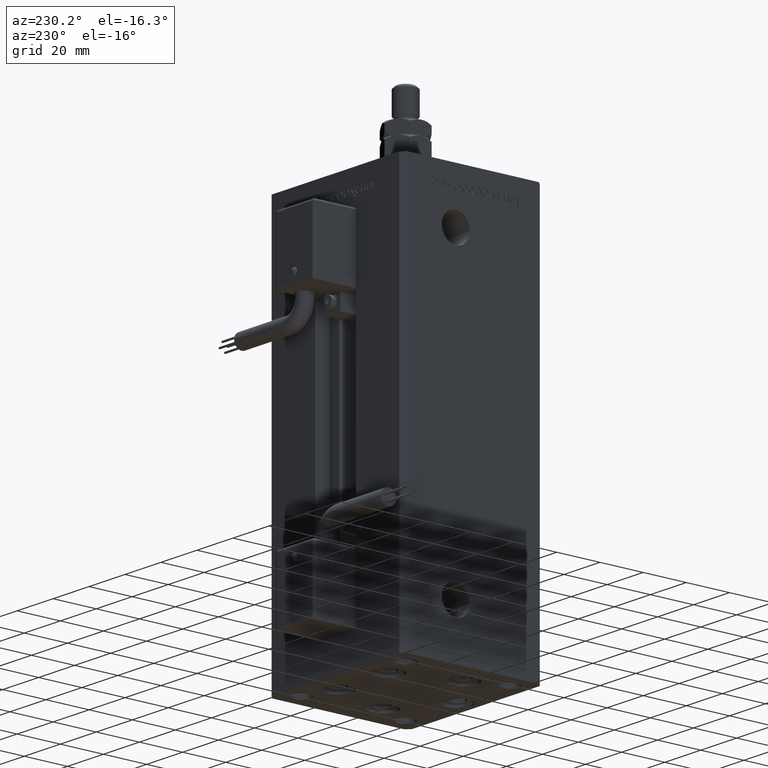
[diagram: clean part render]
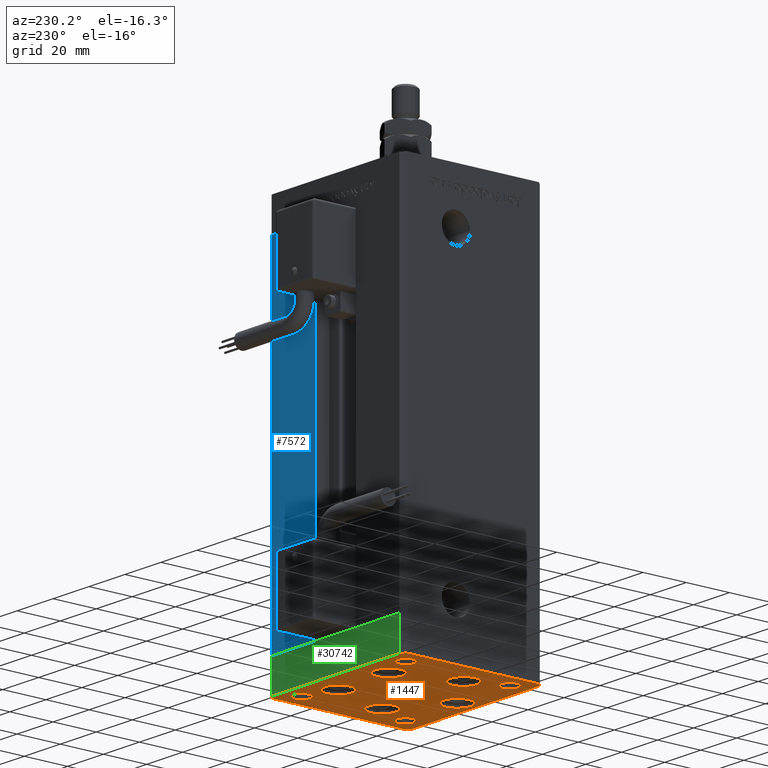
[diagram: same view with three faces highlighted in distinct colors, each labeled with its STEP entity id]
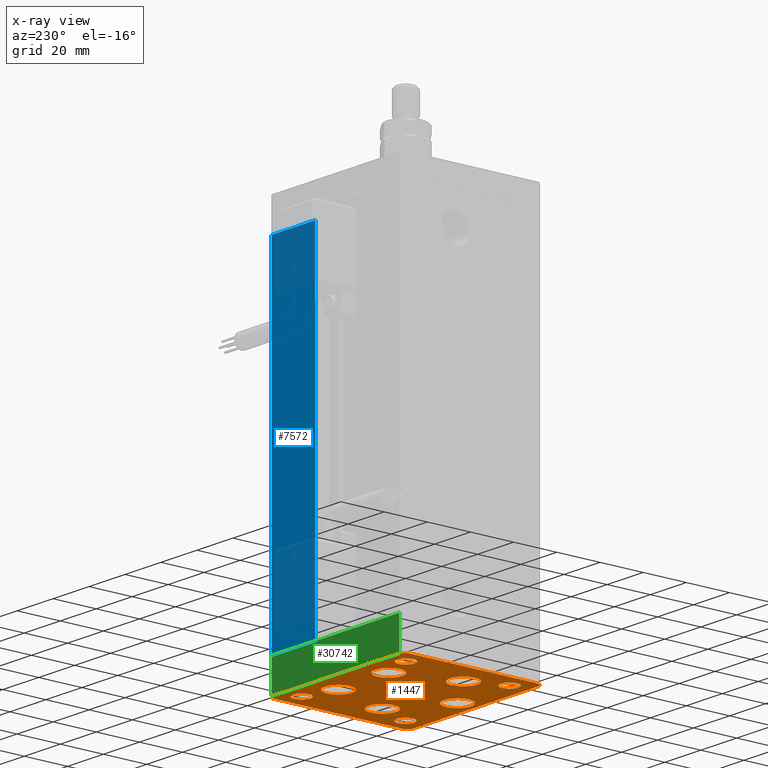
[diagram: x-ray of the same camera — body ghosted, the three highlighted faces saturated]
A machine part, auxiliary view with three faces highlighted in distinct colors.
The next image is the same camera in x-ray (body ghosted, the three faces saturated) — at least one of them is partly hidden behind the body in this view.
Their STEP definitions:

[orange] entity #1447 — the highlighted planar face has unit normal (0, 0, -1).
#62 = VERTEX_POINT ( 'NONE', #29114 ) ;
#218 = FACE_BOUND ( 'NONE', #20363, .T. ) ;
#412 = VERTEX_POINT ( 'NONE', #50158 ) ;
#514 = CARTESIAN_POINT ( 'NONE',  ( -20.24106857963322881, 19.49999999999999645, 0.000000000000000000 ) ) ;
#533 = EDGE_CURVE ( 'NONE', #47865, #7619, #45236, .T. ) ;
#665 = CARTESIAN_POINT ( 'NONE',  ( 33.00000000000001421, -23.99999999999999289, 0.000000000000000000 ) ) ;
#700 = DIRECTION ( 'NONE',  ( 1.000000000000000000, 0.000000000000000000, 0.000000000000000000 ) ) ;
#879 = CARTESIAN_POINT ( 'NONE',  ( -33.00000000000000711, 24.00000000000000711, 0.000000000000000000 ) ) ;
#907 = AXIS2_PLACEMENT_3D ( 'NONE', #25737, #52988, #13665 ) ;
#1350 = EDGE_CURVE ( 'NONE', #19222, #412, #8430, .T. ) ;
#1447 = ADVANCED_FACE ( 'NONE', ( #218, #48142, #4518, #8808, #52997, #40079, #53276, #44959, #26317, #22002 ), #44114, .T. ) ;
#1530 = CARTESIAN_POINT ( 'NONE',  ( 37.50000000000001421, -30.50000000000000711, 0.000000000000000000 ) ) ;
#1838 = CARTESIAN_POINT ( 'NONE',  ( 37.49999999999992184, 30.50000000000001066, 0.000000000000000000 ) ) ;
#1851 = EDGE_CURVE ( 'NONE', #14709, #45138, #33664, .T. ) ;
#2097 = VECTOR ( 'NONE', #33783, 1000.000000000000000 ) ;
#2328 = CARTESIAN_POINT ( 'NONE',  ( -16.37741699796951877, -8.000000000000005329, 0.000000000000000000 ) ) ;
#2399 = AXIS2_PLACEMENT_3D ( 'NONE', #48301, #26473, #43988 ) ;
#2609 = AXIS2_PLACEMENT_3D ( 'NONE', #20620, #20051, #15747 ) ;
#3364 = AXIS2_PLACEMENT_3D ( 'NONE', #7978, #7409, #42424 ) ;
#3369 = CARTESIAN_POINT ( 'NONE',  ( 35.50000000000000711, -32.50000000000000711, 0.000000000000000000 ) ) ;
#3981 = CIRCLE ( 'NONE', #36058, 6.250000000000000000 ) ;
#4245 = EDGE_CURVE ( 'NONE', #10298, #16699, #3981, .T. ) ;
#4518 = FACE_BOUND ( 'NONE', #4865, .T. ) ;
#4847 = ORIENTED_EDGE ( 'NONE', *, *, #44148, .T. ) ;
#4865 = EDGE_LOOP ( 'NONE', ( #9887, #46051 ) ) ;
#4964 = CARTESIAN_POINT ( 'NONE',  ( -37.50000000000001421, 30.49999999999998579, 0.000000000000000000 ) ) ;
#5441 = VERTEX_POINT ( 'NONE', #39960 ) ;
#5632 = DIRECTION ( 'NONE',  ( 1.000000000000000000, 0.000000000000000000, 0.000000000000000000 ) ) ;
#5747 = CARTESIAN_POINT ( 'NONE',  ( -22.62741699796951877, -8.000000000000005329, 0.000000000000000000 ) ) ;
#5761 = DIRECTION ( 'NONE',  ( 1.000000000000000000, 0.000000000000000000, 0.000000000000000000 ) ) ;
#6050 = DIRECTION ( 'NONE',  ( -0.000000000000000000, 0.000000000000000000, 1.000000000000000000 ) ) ;
#6156 = EDGE_CURVE ( 'NONE', #8160, #40998, #29697, .T. ) ;
#6549 = ORIENTED_EDGE ( 'NONE', *, *, #10076, .T. ) ;
#7386 = DIRECTION ( 'NONE',  ( 1.000000000000000000, 0.000000000000000000, 0.000000000000000000 ) ) ;
#7409 = DIRECTION ( 'NONE',  ( 0.000000000000000000, -0.000000000000000000, -1.000000000000000000 ) ) ;
#7619 = VERTEX_POINT ( 'NONE', #665 ) ;
#7978 = CARTESIAN_POINT ( 'NONE',  ( -22.62741699796951877, -8.000000000000005329, 0.000000000000000000 ) ) ;
#8160 = VERTEX_POINT ( 'NONE', #23151 ) ;
#8430 = CIRCLE ( 'NONE', #16695, 6.250000000000000000 ) ;
#8523 = VERTEX_POINT ( 'NONE', #53227 ) ;
#8615 = EDGE_CURVE ( 'NONE', #13317, #24073, #33685, .T. ) ;
#8682 = CIRCLE ( 'NONE', #18744, 4.000000000000003553 ) ;
#8718 = EDGE_LOOP ( 'NONE', ( #39014, #18235 ) ) ;
#8762 = AXIS2_PLACEMENT_3D ( 'NONE', #43005, #47890, #21457 ) ;
#8808 = FACE_BOUND ( 'NONE', #47370, .T. ) ;
#8981 = DIRECTION ( 'NONE',  ( -0.000000000000000000, 0.000000000000000000, 1.000000000000000000 ) ) ;
#9375 = CARTESIAN_POINT ( 'NONE',  ( 0.000000000000000000, 0.000000000000000000, 0.000000000000000000 ) ) ;
#9468 = AXIS2_PLACEMENT_3D ( 'NONE', #10736, #53799, #36574 ) ;
#9560 = CARTESIAN_POINT ( 'NONE',  ( -35.49999999999998579, -32.50000000000001421, 0.000000000000000000 ) ) ;
#9710 = ORIENTED_EDGE ( 'NONE', *, *, #29557, .T. ) ;
#9819 = CARTESIAN_POINT ( 'NONE',  ( 29.00000000000001066, 24.00000000000000711, 0.000000000000000000 ) ) ;
#9887 = ORIENTED_EDGE ( 'NONE', *, *, #51711, .T. ) ;
#9939 = AXIS2_PLACEMENT_3D ( 'NONE', #35110, #13852, #700 ) ;
#10076 = EDGE_CURVE ( 'NONE', #56231, #53772, #33510, .T. ) ;
#10298 = VERTEX_POINT ( 'NONE', #51644 ) ;
#10736 = CARTESIAN_POINT ( 'NONE',  ( -13.99106857963322703, 19.49999999999999645, 0.000000000000000000 ) ) ;
#10786 = AXIS2_PLACEMENT_3D ( 'NONE', #21888, #48600, #30519 ) ;
#10854 = DIRECTION ( 'NONE',  ( 0.000000000000000000, -0.000000000000000000, -1.000000000000000000 ) ) ;
#10907 = DIRECTION ( 'NONE',  ( 1.000000000000000000, 0.000000000000000000, 0.000000000000000000 ) ) ;
#11134 = LINE ( 'NONE', #24035, #23339 ) ;
#11323 = VERTEX_POINT ( 'NONE', #16290 ) ;
#11656 = DIRECTION ( 'NONE',  ( -0.000000000000000000, 0.000000000000000000, 1.000000000000000000 ) ) ;
#12029 = DIRECTION ( 'NONE',  ( -0.7071067811865426878, -0.7071067811865524577, 0.000000000000000000 ) ) ;
#12031 = ORIENTED_EDGE ( 'NONE', *, *, #54682, .T. ) ;
#12230 = EDGE_CURVE ( 'NONE', #8523, #37002, #29899, .T. ) ;
#12247 = CARTESIAN_POINT ( 'NONE',  ( 29.00000000000001066, -23.99999999999999289, 0.000000000000000000 ) ) ;
#12414 = CARTESIAN_POINT ( 'NONE',  ( -35.49999999999998579, -32.50000000000001421, 0.000000000000000000 ) ) ;
#12732 = EDGE_CURVE ( 'NONE', #5441, #13317, #49505, .T. ) ;
#12862 = CARTESIAN_POINT ( 'NONE',  ( 35.49999999999992184, 32.50000000000000711, 0.000000000000000000 ) ) ;
#13143 = ORIENTED_EDGE ( 'NONE', *, *, #26731, .T. ) ;
#13317 = VERTEX_POINT ( 'NONE', #9560 ) ;
#13665 = DIRECTION ( 'NONE',  ( 1.000000000000000000, 0.000000000000000000, 0.000000000000000000 ) ) ;
#13852 = DIRECTION ( 'NONE',  ( 0.000000000000000000, -0.000000000000000000, -1.000000000000000000 ) ) ;
#14119 = AXIS2_PLACEMENT_3D ( 'NONE', #43211, #11656, #16517 ) ;
#14253 = CIRCLE ( 'NONE', #15176, 3.999999999999996447 ) ;
#14667 = DIRECTION ( 'NONE',  ( 1.000000000000000000, 0.000000000000000000, 0.000000000000000000 ) ) ;
#14709 = VERTEX_POINT ( 'NONE', #1838 ) ;
#14745 = DIRECTION ( 'NONE',  ( 0.7071067811865474617, -0.7071067811865474617, 0.000000000000000000 ) ) ;
#15093 = CIRCLE ( 'NONE', #44462, 6.250000000000001776 ) ;
#15176 = AXIS2_PLACEMENT_3D ( 'NONE', #17572, #8981, #38562 ) ;
#15220 = DIRECTION ( 'NONE',  ( 1.000000000000000000, 0.000000000000000000, 0.000000000000000000 ) ) ;
#15249 = VECTOR ( 'NONE', #14745, 1000.000000000000114 ) ;
#15357 = CIRCLE ( 'NONE', #10786, 4.000000000000000000 ) ;
#15747 = DIRECTION ( 'NONE',  ( 1.000000000000000000, 0.000000000000000000, 0.000000000000000000 ) ) ;
#15919 = ORIENTED_EDGE ( 'NONE', *, *, #51192, .T. ) ;
#16290 = CARTESIAN_POINT ( 'NONE',  ( -25.00000000000001421, 24.00000000000000711, 0.000000000000000000 ) ) ;
#16490 = CARTESIAN_POINT ( 'NONE',  ( 7.741068579633223479, 19.50000000000000000, 0.000000000000000000 ) ) ;
#16517 = DIRECTION ( 'NONE',  ( 1.000000000000000000, 0.000000000000000000, 0.000000000000000000 ) ) ;
#16695 = AXIS2_PLACEMENT_3D ( 'NONE', #47577, #34647, #7386 ) ;
#16699 = VERTEX_POINT ( 'NONE', #52819 ) ;
#16924 = CARTESIAN_POINT ( 'NONE',  ( 35.50000000000000711, -32.50000000000000711, 0.000000000000000000 ) ) ;
#17224 = CARTESIAN_POINT ( 'NONE',  ( 37.50000000000001421, -30.50000000000000711, 0.000000000000000000 ) ) ;
#17572 = CARTESIAN_POINT ( 'NONE',  ( -29.00000000000001066, 24.00000000000000711, 0.000000000000000000 ) ) ;
#17802 = VERTEX_POINT ( 'NONE', #39566 ) ;
#17935 = CIRCLE ( 'NONE', #25289, 6.250000000000001776 ) ;
#18235 = ORIENTED_EDGE ( 'NONE', *, *, #53923, .F. ) ;
#18744 = AXIS2_PLACEMENT_3D ( 'NONE', #19511, #41630, #5761 ) ;
#19040 = CARTESIAN_POINT ( 'NONE',  ( -37.49999999999998579, -30.50000000000001421, 0.000000000000000000 ) ) ;
#19222 = VERTEX_POINT ( 'NONE', #514 ) ;
#19439 = EDGE_LOOP ( 'NONE', ( #48494, #12031 ) ) ;
#19511 = CARTESIAN_POINT ( 'NONE',  ( 29.00000000000001066, -23.99999999999999289, 0.000000000000000000 ) ) ;
#19874 = EDGE_CURVE ( 'NONE', #17802, #37495, #17935, .T. ) ;
#20051 = DIRECTION ( 'NONE',  ( -0.000000000000000000, 0.000000000000000000, 1.000000000000000000 ) ) ;
#20224 = CIRCLE ( 'NONE', #42235, 4.000000000000003553 ) ;
#20296 = EDGE_LOOP ( 'NONE', ( #6549, #13143 ) ) ;
#20363 = EDGE_LOOP ( 'NONE', ( #56650, #4847 ) ) ;
#20620 = CARTESIAN_POINT ( 'NONE',  ( -29.00000000000001066, 24.00000000000000711, 0.000000000000000000 ) ) ;
#20730 = EDGE_CURVE ( 'NONE', #31255, #62, #27129, .T. ) ;
#20891 = CIRCLE ( 'NONE', #9939, 6.250000000000000000 ) ;
#21457 = DIRECTION ( 'NONE',  ( 1.000000000000000000, 0.000000000000000000, 0.000000000000000000 ) ) ;
#21597 = DIRECTION ( 'NONE',  ( 4.550094363217855288E-16, -1.000000000000000000, 0.000000000000000000 ) ) ;
#21888 = CARTESIAN_POINT ( 'NONE',  ( -29.00000000000001066, -23.99999999999999289, 0.000000000000000000 ) ) ;
#22002 = FACE_BOUND ( 'NONE', #38743, .T. ) ;
#22189 = VECTOR ( 'NONE', #51163, 999.9999999999998863 ) ;
#22922 = EDGE_LOOP ( 'NONE', ( #55616, #30773 ) ) ;
#23151 = CARTESIAN_POINT ( 'NONE',  ( 25.00000000000000711, 24.00000000000000711, 0.000000000000000000 ) ) ;
#23339 = VECTOR ( 'NONE', #51303, 1000.000000000000000 ) ;
#23456 = CIRCLE ( 'NONE', #48231, 6.250000000000001776 ) ;
#23814 = DIRECTION ( 'NONE',  ( 0.000000000000000000, -0.000000000000000000, -1.000000000000000000 ) ) ;
#24035 = CARTESIAN_POINT ( 'NONE',  ( 35.49999999999992184, 32.50000000000000711, 0.000000000000000000 ) ) ;
#24073 = VERTEX_POINT ( 'NONE', #16924 ) ;
#24263 = VECTOR ( 'NONE', #24771, 1000.000000000000000 ) ;
#24771 = DIRECTION ( 'NONE',  ( 1.000000000000000000, 9.773090005503140331E-17, 0.000000000000000000 ) ) ;
#24942 = AXIS2_PLACEMENT_3D ( 'NONE', #9375, #39514, #5632 ) ;
#25289 = AXIS2_PLACEMENT_3D ( 'NONE', #45671, #41361, #15220 ) ;
#25615 = CARTESIAN_POINT ( 'NONE',  ( 37.49999999999992184, 30.50000000000001066, 0.000000000000000000 ) ) ;
#25737 = CARTESIAN_POINT ( 'NONE',  ( 2.939152317953647500E-15, -24.00000000000000000, 0.000000000000000000 ) ) ;
#25769 = EDGE_CURVE ( 'NONE', #62, #31255, #15357, .T. ) ;
#25882 = EDGE_CURVE ( 'NONE', #28642, #14709, #36786, .T. ) ;
#25890 = ORIENTED_EDGE ( 'NONE', *, *, #533, .T. ) ;
#26317 = FACE_OUTER_BOUND ( 'NONE', #32735, .T. ) ;
#26352 = EDGE_CURVE ( 'NONE', #11323, #42214, #26399, .T. ) ;
#26399 = CIRCLE ( 'NONE', #2609, 3.999999999999996447 ) ;
#26473 = DIRECTION ( 'NONE',  ( 0.000000000000000000, -0.000000000000000000, -1.000000000000000000 ) ) ;
#26731 = EDGE_CURVE ( 'NONE', #53772, #56231, #20891, .T. ) ;
#27061 = DIRECTION ( 'NONE',  ( 1.000000000000000000, 0.000000000000000000, 0.000000000000000000 ) ) ;
#27129 = CIRCLE ( 'NONE', #2399, 4.000000000000000000 ) ;
#27314 = ORIENTED_EDGE ( 'NONE', *, *, #25882, .T. ) ;
#28642 = VERTEX_POINT ( 'NONE', #17224 ) ;
#28746 = DIRECTION ( 'NONE',  ( -1.478780668045802821E-15, 1.000000000000000000, 0.000000000000000000 ) ) ;
#29114 = CARTESIAN_POINT ( 'NONE',  ( -25.00000000000001066, -23.99999999999999289, 0.000000000000000000 ) ) ;
#29557 = EDGE_CURVE ( 'NONE', #31652, #44016, #42458, .T. ) ;
#29697 = CIRCLE ( 'NONE', #14119, 4.000000000000003553 ) ;
#29899 = CIRCLE ( 'NONE', #3364, 6.250000000000001776 ) ;
#30519 = DIRECTION ( 'NONE',  ( 1.000000000000000000, 0.000000000000000000, 0.000000000000000000 ) ) ;
#30598 = EDGE_CURVE ( 'NONE', #16699, #10298, #34796, .T. ) ;
#30762 = CARTESIAN_POINT ( 'NONE',  ( -33.00000000000000711, -23.99999999999999289, 0.000000000000000000 ) ) ;
#30773 = ORIENTED_EDGE ( 'NONE', *, *, #6156, .F. ) ;
#31255 = VERTEX_POINT ( 'NONE', #30762 ) ;
#31652 = VERTEX_POINT ( 'NONE', #43250 ) ;
#32407 = CIRCLE ( 'NONE', #9468, 6.250000000000000000 ) ;
#32565 = ORIENTED_EDGE ( 'NONE', *, *, #44373, .T. ) ;
#32735 = EDGE_LOOP ( 'NONE', ( #36550, #41340, #33425, #27314, #41984, #45932, #9710, #32565 ) ) ;
#33319 = AXIS2_PLACEMENT_3D ( 'NONE', #12247, #38647, #56157 ) ;
#33425 = ORIENTED_EDGE ( 'NONE', *, *, #46105, .T. ) ;
#33510 = CIRCLE ( 'NONE', #8762, 6.250000000000000000 ) ;
#33664 = LINE ( 'NONE', #25615, #22189 ) ;
#33685 = LINE ( 'NONE', #12414, #24263 ) ;
#33783 = DIRECTION ( 'NONE',  ( 0.7071067811865487940, 0.7071067811865463515, 0.000000000000000000 ) ) ;
#34475 = EDGE_LOOP ( 'NONE', ( #15919, #25890 ) ) ;
#34647 = DIRECTION ( 'NONE',  ( 0.000000000000000000, -0.000000000000000000, -1.000000000000000000 ) ) ;
#34785 = CARTESIAN_POINT ( 'NONE',  ( 33.00000000000001421, 24.00000000000000711, 0.000000000000000000 ) ) ;
#34796 = CIRCLE ( 'NONE', #907, 6.250000000000000000 ) ;
#35110 = CARTESIAN_POINT ( 'NONE',  ( 13.99106857963322348, 19.50000000000000000, 0.000000000000000000 ) ) ;
#35685 = CARTESIAN_POINT ( 'NONE',  ( 2.939152317953647500E-15, -24.00000000000000000, 0.000000000000000000 ) ) ;
#36058 = AXIS2_PLACEMENT_3D ( 'NONE', #35685, #53184, #27061 ) ;
#36550 = ORIENTED_EDGE ( 'NONE', *, *, #12732, .T. ) ;
#36574 = DIRECTION ( 'NONE',  ( 1.000000000000000000, 0.000000000000000000, 0.000000000000000000 ) ) ;
#36786 = LINE ( 'NONE', #1530, #41998 ) ;
#37002 = VERTEX_POINT ( 'NONE', #2328 ) ;
#37024 = EDGE_CURVE ( 'NONE', #40998, #8160, #20224, .T. ) ;
#37495 = VERTEX_POINT ( 'NONE', #54725 ) ;
#38068 = ORIENTED_EDGE ( 'NONE', *, *, #30598, .T. ) ;
#38097 = CARTESIAN_POINT ( 'NONE',  ( 22.62741699796951877, -8.000000000000000000, 0.000000000000000000 ) ) ;
#38562 = DIRECTION ( 'NONE',  ( 1.000000000000000000, 0.000000000000000000, 0.000000000000000000 ) ) ;
#38647 = DIRECTION ( 'NONE',  ( 0.000000000000000000, -0.000000000000000000, -1.000000000000000000 ) ) ;
#38743 = EDGE_LOOP ( 'NONE', ( #55044, #39993 ) ) ;
#39014 = ORIENTED_EDGE ( 'NONE', *, *, #26352, .F. ) ;
#39216 = LINE ( 'NONE', #3369, #2097 ) ;
#39514 = DIRECTION ( 'NONE',  ( -0.000000000000000000, 0.000000000000000000, 1.000000000000000000 ) ) ;
#39554 = ORIENTED_EDGE ( 'NONE', *, *, #4245, .T. ) ;
#39566 = CARTESIAN_POINT ( 'NONE',  ( 28.87741699796952233, -8.000000000000000000, 0.000000000000000000 ) ) ;
#39960 = CARTESIAN_POINT ( 'NONE',  ( -37.49999999999998579, -30.50000000000001421, 0.000000000000000000 ) ) ;
#39993 = ORIENTED_EDGE ( 'NONE', *, *, #20730, .T. ) ;
#40079 = FACE_BOUND ( 'NONE', #22922, .T. ) ;
#40288 = VECTOR ( 'NONE', #12029, 1000.000000000000000 ) ;
#40998 = VERTEX_POINT ( 'NONE', #34785 ) ;
#41340 = ORIENTED_EDGE ( 'NONE', *, *, #8615, .T. ) ;
#41361 = DIRECTION ( 'NONE',  ( 0.000000000000000000, -0.000000000000000000, -1.000000000000000000 ) ) ;
#41438 = CARTESIAN_POINT ( 'NONE',  ( 20.24106857963322526, 19.50000000000000000, 0.000000000000000000 ) ) ;
#41559 = DIRECTION ( 'NONE',  ( 1.000000000000000000, 0.000000000000000000, 0.000000000000000000 ) ) ;
#41630 = DIRECTION ( 'NONE',  ( 0.000000000000000000, -0.000000000000000000, -1.000000000000000000 ) ) ;
#41984 = ORIENTED_EDGE ( 'NONE', *, *, #1851, .T. ) ;
#41998 = VECTOR ( 'NONE', #28746, 1000.000000000000000 ) ;
#42214 = VERTEX_POINT ( 'NONE', #879 ) ;
#42235 = AXIS2_PLACEMENT_3D ( 'NONE', #9819, #6050, #14667 ) ;
#42424 = DIRECTION ( 'NONE',  ( 1.000000000000000000, 0.000000000000000000, 0.000000000000000000 ) ) ;
#42458 = LINE ( 'NONE', #47342, #40288 ) ;
#43005 = CARTESIAN_POINT ( 'NONE',  ( 13.99106857963322348, 19.50000000000000000, 0.000000000000000000 ) ) ;
#43211 = CARTESIAN_POINT ( 'NONE',  ( 29.00000000000001066, 24.00000000000000711, 0.000000000000000000 ) ) ;
#43250 = CARTESIAN_POINT ( 'NONE',  ( -35.50000000000002842, 32.49999999999999289, 0.000000000000000000 ) ) ;
#43838 = CARTESIAN_POINT ( 'NONE',  ( 25.00000000000000711, -23.99999999999999289, 0.000000000000000000 ) ) ;
#43988 = DIRECTION ( 'NONE',  ( 1.000000000000000000, 0.000000000000000000, 0.000000000000000000 ) ) ;
#44016 = VERTEX_POINT ( 'NONE', #45622 ) ;
#44114 = PLANE ( 'NONE',  #24942 ) ;
#44148 = EDGE_CURVE ( 'NONE', #412, #19222, #32407, .T. ) ;
#44373 = EDGE_CURVE ( 'NONE', #44016, #5441, #52886, .T. ) ;
#44462 = AXIS2_PLACEMENT_3D ( 'NONE', #38097, #10854, #41559 ) ;
#44959 = FACE_BOUND ( 'NONE', #8718, .T. ) ;
#45138 = VERTEX_POINT ( 'NONE', #12862 ) ;
#45236 = CIRCLE ( 'NONE', #33319, 4.000000000000003553 ) ;
#45622 = CARTESIAN_POINT ( 'NONE',  ( -37.50000000000001421, 30.49999999999998579, 0.000000000000000000 ) ) ;
#45671 = CARTESIAN_POINT ( 'NONE',  ( 22.62741699796951877, -8.000000000000000000, 0.000000000000000000 ) ) ;
#45932 = ORIENTED_EDGE ( 'NONE', *, *, #51717, .T. ) ;
#46051 = ORIENTED_EDGE ( 'NONE', *, *, #19874, .T. ) ;
#46105 = EDGE_CURVE ( 'NONE', #24073, #28642, #39216, .T. ) ;
#47342 = CARTESIAN_POINT ( 'NONE',  ( -35.50000000000002842, 32.49999999999999289, 0.000000000000000000 ) ) ;
#47370 = EDGE_LOOP ( 'NONE', ( #38068, #39554 ) ) ;
#47577 = CARTESIAN_POINT ( 'NONE',  ( -13.99106857963322703, 19.49999999999999645, 0.000000000000000000 ) ) ;
#47865 = VERTEX_POINT ( 'NONE', #43838 ) ;
#47890 = DIRECTION ( 'NONE',  ( 0.000000000000000000, -0.000000000000000000, -1.000000000000000000 ) ) ;
#48142 = FACE_BOUND ( 'NONE', #20296, .T. ) ;
#48231 = AXIS2_PLACEMENT_3D ( 'NONE', #5747, #23814, #10907 ) ;
#48301 = CARTESIAN_POINT ( 'NONE',  ( -29.00000000000001066, -23.99999999999999289, 0.000000000000000000 ) ) ;
#48494 = ORIENTED_EDGE ( 'NONE', *, *, #12230, .T. ) ;
#48600 = DIRECTION ( 'NONE',  ( 0.000000000000000000, -0.000000000000000000, -1.000000000000000000 ) ) ;
#49505 = LINE ( 'NONE', #19040, #15249 ) ;
#50158 = CARTESIAN_POINT ( 'NONE',  ( -7.741068579633227031, 19.49999999999999645, 0.000000000000000000 ) ) ;
#51163 = DIRECTION ( 'NONE',  ( -0.7071067811865482389, 0.7071067811865469066, 0.000000000000000000 ) ) ;
#51192 = EDGE_CURVE ( 'NONE', #7619, #47865, #8682, .T. ) ;
#51303 = DIRECTION ( 'NONE',  ( -1.000000000000000000, -1.954618001100629052E-16, 0.000000000000000000 ) ) ;
#51644 = CARTESIAN_POINT ( 'NONE',  ( 6.250000000000002665, -24.00000000000000000, 0.000000000000000000 ) ) ;
#51711 = EDGE_CURVE ( 'NONE', #37495, #17802, #15093, .T. ) ;
#51717 = EDGE_CURVE ( 'NONE', #45138, #31652, #11134, .T. ) ;
#52819 = CARTESIAN_POINT ( 'NONE',  ( -6.249999999999997335, -24.00000000000000000, 0.000000000000000000 ) ) ;
#52886 = LINE ( 'NONE', #4964, #53371 ) ;
#52988 = DIRECTION ( 'NONE',  ( 0.000000000000000000, -0.000000000000000000, -1.000000000000000000 ) ) ;
#52997 = FACE_BOUND ( 'NONE', #19439, .T. ) ;
#53184 = DIRECTION ( 'NONE',  ( 0.000000000000000000, -0.000000000000000000, -1.000000000000000000 ) ) ;
#53227 = CARTESIAN_POINT ( 'NONE',  ( -28.87741699796952233, -8.000000000000005329, 0.000000000000000000 ) ) ;
#53276 = FACE_BOUND ( 'NONE', #34475, .T. ) ;
#53371 = VECTOR ( 'NONE', #21597, 1000.000000000000000 ) ;
#53772 = VERTEX_POINT ( 'NONE', #41438 ) ;
#53799 = DIRECTION ( 'NONE',  ( 0.000000000000000000, -0.000000000000000000, -1.000000000000000000 ) ) ;
#53923 = EDGE_CURVE ( 'NONE', #42214, #11323, #14253, .T. ) ;
#54682 = EDGE_CURVE ( 'NONE', #37002, #8523, #23456, .T. ) ;
#54725 = CARTESIAN_POINT ( 'NONE',  ( 16.37741699796951877, -8.000000000000000000, 0.000000000000000000 ) ) ;
#55044 = ORIENTED_EDGE ( 'NONE', *, *, #25769, .T. ) ;
#55616 = ORIENTED_EDGE ( 'NONE', *, *, #37024, .F. ) ;
#56157 = DIRECTION ( 'NONE',  ( 1.000000000000000000, 0.000000000000000000, 0.000000000000000000 ) ) ;
#56231 = VERTEX_POINT ( 'NONE', #16490 ) ;
#56650 = ORIENTED_EDGE ( 'NONE', *, *, #1350, .T. ) ;

[blue] entity #7572 — the highlighted planar face has unit normal (0, -1, 0).
#27 = EDGE_CURVE ( 'NONE', #17243, #48227, #50628, .T. ) ;
#120 = DIRECTION ( 'NONE',  ( 0.000000000000000000, -1.000000000000000000, 0.000000000000000000 ) ) ;
#7003 = DIRECTION ( 'NONE',  ( -1.000000000000000000, 0.000000000000000000, 0.000000000000000000 ) ) ;
#7572 = ADVANCED_FACE ( 'NONE', ( #35950 ), #26212, .F. ) ;
#8570 = VERTEX_POINT ( 'NONE', #53786 ) ;
#9254 = VECTOR ( 'NONE', #56604, 1000.000000000000000 ) ;
#11314 = CARTESIAN_POINT ( 'NONE',  ( -11.25000000000000178, 32.49999999999999289, 0.000000000000000000 ) ) ;
#12097 = ORIENTED_EDGE ( 'NONE', *, *, #51002, .T. ) ;
#12393 = CARTESIAN_POINT ( 'NONE',  ( -11.25000000000000178, 32.49999999999999289, 156.0000000000000000 ) ) ;
#17112 = ORIENTED_EDGE ( 'NONE', *, *, #27, .T. ) ;
#17243 = VERTEX_POINT ( 'NONE', #41117 ) ;
#17580 = DIRECTION ( 'NONE',  ( 0.000000000000000000, -0.000000000000000000, -1.000000000000000000 ) ) ;
#19856 = CARTESIAN_POINT ( 'NONE',  ( 35.50000000000000000, 32.49999999999999289, 156.0000000000000000 ) ) ;
#21133 = DIRECTION ( 'NONE',  ( -0.000000000000000000, -0.000000000000000000, 1.000000000000000000 ) ) ;
#21360 = CARTESIAN_POINT ( 'NONE',  ( 11.24999999999999467, 32.49999999999999289, 156.0000000000000000 ) ) ;
#21893 = CARTESIAN_POINT ( 'NONE',  ( -11.25000000000000178, 32.49999999999999289, 156.0000000000000000 ) ) ;
#21998 = LINE ( 'NONE', #55597, #37888 ) ;
#23223 = VECTOR ( 'NONE', #7003, 1000.000000000000000 ) ;
#26212 = PLANE ( 'NONE',  #43505 ) ;
#30561 = CARTESIAN_POINT ( 'NONE',  ( 11.25000000000000178, 32.49999999999999289, 0.000000000000000000 ) ) ;
#33430 = VECTOR ( 'NONE', #41134, 1000.000000000000000 ) ;
#35950 = FACE_OUTER_BOUND ( 'NONE', #40273, .T. ) ;
#37888 = VECTOR ( 'NONE', #21133, 1000.000000000000000 ) ;
#38975 = EDGE_CURVE ( 'NONE', #48273, #8570, #39085, .T. ) ;
#39085 = LINE ( 'NONE', #12393, #9254 ) ;
#40273 = EDGE_LOOP ( 'NONE', ( #17112, #42117, #48478, #12097 ) ) ;
#41117 = CARTESIAN_POINT ( 'NONE',  ( 35.50000000000000000, 32.49999999999999289, 0.000000000000000000 ) ) ;
#41134 = DIRECTION ( 'NONE',  ( -0.000000000000000000, -0.000000000000000000, -1.000000000000000000 ) ) ;
#41691 = LINE ( 'NONE', #19856, #33430 ) ;
#42117 = ORIENTED_EDGE ( 'NONE', *, *, #46940, .T. ) ;
#43505 = AXIS2_PLACEMENT_3D ( 'NONE', #21893, #120, #17580 ) ;
#46940 = EDGE_CURVE ( 'NONE', #48227, #48273, #21998, .T. ) ;
#48227 = VERTEX_POINT ( 'NONE', #30561 ) ;
#48273 = VERTEX_POINT ( 'NONE', #21360 ) ;
#48478 = ORIENTED_EDGE ( 'NONE', *, *, #38975, .T. ) ;
#50628 = LINE ( 'NONE', #11314, #23223 ) ;
#51002 = EDGE_CURVE ( 'NONE', #8570, #17243, #41691, .T. ) ;
#53786 = CARTESIAN_POINT ( 'NONE',  ( 35.50000000000000000, 32.49999999999999289, 156.0000000000000000 ) ) ;
#55597 = CARTESIAN_POINT ( 'NONE',  ( 11.25000000000000178, 32.49999999999999289, 0.000000000000000000 ) ) ;
#56604 = DIRECTION ( 'NONE',  ( 1.000000000000000000, 0.000000000000000000, 0.000000000000000000 ) ) ;

[green] entity #30742 — the highlighted planar face has unit normal (0, 1, 0).
#1036 = CARTESIAN_POINT ( 'NONE',  ( -35.50000000000002842, 32.49999999999999289, -15.00000000000000000 ) ) ;
#2170 = FACE_OUTER_BOUND ( 'NONE', #36029, .T. ) ;
#3841 = CARTESIAN_POINT ( 'NONE',  ( 35.49999999999992184, 32.50000000000000711, -15.00000000000000000 ) ) ;
#5306 = VECTOR ( 'NONE', #9049, 1000.000000000000000 ) ;
#6305 = VECTOR ( 'NONE', #55828, 1000.000000000000000 ) ;
#7215 = ORIENTED_EDGE ( 'NONE', *, *, #19462, .F. ) ;
#7469 = ORIENTED_EDGE ( 'NONE', *, *, #51717, .F. ) ;
#9049 = DIRECTION ( 'NONE',  ( 0.000000000000000000, 0.000000000000000000, 1.000000000000000000 ) ) ;
#9390 = VERTEX_POINT ( 'NONE', #3841 ) ;
#9434 = VERTEX_POINT ( 'NONE', #21883 ) ;
#11043 = DIRECTION ( 'NONE',  ( -1.954618001100629052E-16, 1.000000000000000000, 0.000000000000000000 ) ) ;
#11134 = LINE ( 'NONE', #24035, #23339 ) ;
#12862 = CARTESIAN_POINT ( 'NONE',  ( 35.49999999999992184, 32.50000000000000711, 0.000000000000000000 ) ) ;
#14261 = EDGE_CURVE ( 'NONE', #9390, #9434, #45082, .T. ) ;
#14410 = VECTOR ( 'NONE', #32443, 1000.000000000000000 ) ;
#18943 = CARTESIAN_POINT ( 'NONE',  ( 35.49999999999992184, 32.50000000000000711, -15.00000000000000000 ) ) ;
#19462 = EDGE_CURVE ( 'NONE', #9390, #45138, #25111, .T. ) ;
#19637 = PLANE ( 'NONE',  #54812 ) ;
#21883 = CARTESIAN_POINT ( 'NONE',  ( -35.50000000000002842, 32.49999999999999289, -15.00000000000000000 ) ) ;
#22806 = LINE ( 'NONE', #1036, #5306 ) ;
#23339 = VECTOR ( 'NONE', #51303, 1000.000000000000000 ) ;
#24035 = CARTESIAN_POINT ( 'NONE',  ( 35.49999999999992184, 32.50000000000000711, 0.000000000000000000 ) ) ;
#24758 = EDGE_CURVE ( 'NONE', #9434, #31652, #22806, .T. ) ;
#25111 = LINE ( 'NONE', #38324, #6305 ) ;
#30742 = ADVANCED_FACE ( 'NONE', ( #2170 ), #19637, .T. ) ;
#31652 = VERTEX_POINT ( 'NONE', #43250 ) ;
#32443 = DIRECTION ( 'NONE',  ( -1.000000000000000000, -1.954618001100629052E-16, 0.000000000000000000 ) ) ;
#36029 = EDGE_LOOP ( 'NONE', ( #7469, #7215, #37638, #56038 ) ) ;
#37638 = ORIENTED_EDGE ( 'NONE', *, *, #14261, .T. ) ;
#38324 = CARTESIAN_POINT ( 'NONE',  ( 35.49999999999992184, 32.50000000000000711, -15.00000000000000000 ) ) ;
#41472 = CARTESIAN_POINT ( 'NONE',  ( 35.49999999999992184, 32.50000000000000711, -15.00000000000000000 ) ) ;
#42319 = DIRECTION ( 'NONE',  ( -1.000000000000000000, -1.954618001100629052E-16, 0.000000000000000000 ) ) ;
#43250 = CARTESIAN_POINT ( 'NONE',  ( -35.50000000000002842, 32.49999999999999289, 0.000000000000000000 ) ) ;
#45082 = LINE ( 'NONE', #18943, #14410 ) ;
#45138 = VERTEX_POINT ( 'NONE', #12862 ) ;
#51303 = DIRECTION ( 'NONE',  ( -1.000000000000000000, -1.954618001100629052E-16, 0.000000000000000000 ) ) ;
#51717 = EDGE_CURVE ( 'NONE', #45138, #31652, #11134, .T. ) ;
#54812 = AXIS2_PLACEMENT_3D ( 'NONE', #41472, #11043, #42319 ) ;
#55828 = DIRECTION ( 'NONE',  ( 0.000000000000000000, 0.000000000000000000, 1.000000000000000000 ) ) ;
#56038 = ORIENTED_EDGE ( 'NONE', *, *, #24758, .T. ) ;